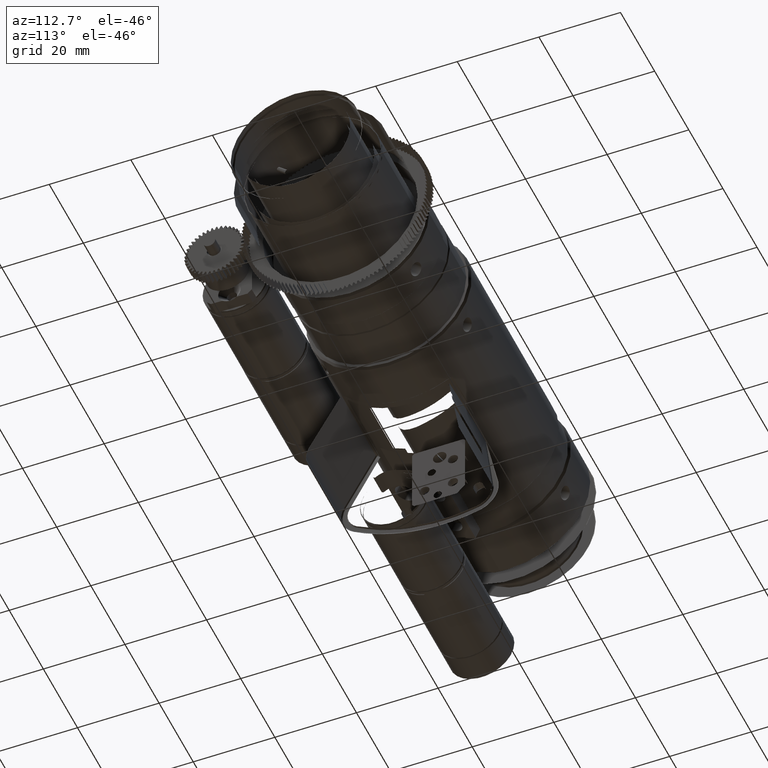
[diagram: clean part render]
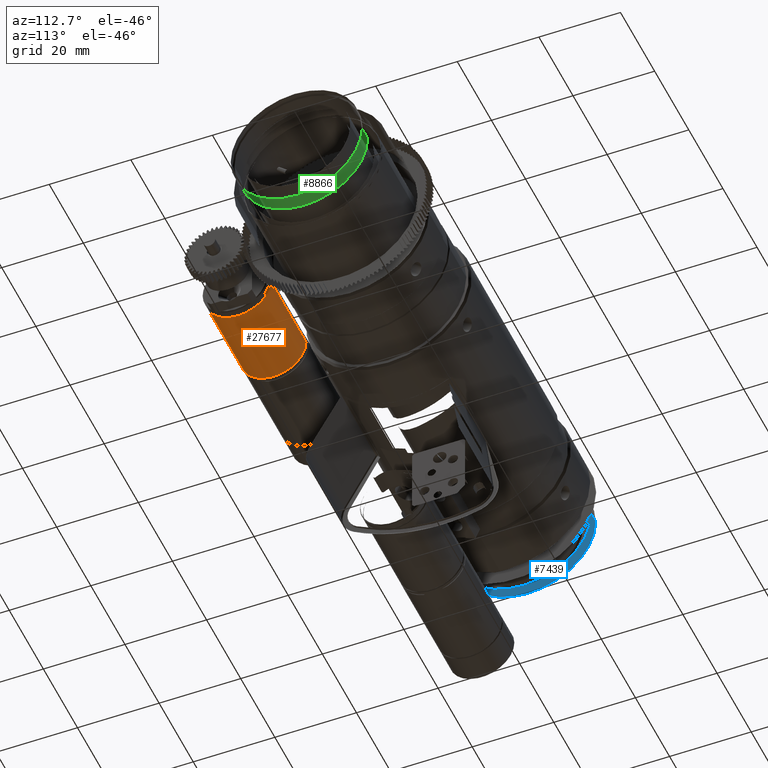
[diagram: same view with three faces highlighted in distinct colors, each labeled with its STEP entity id]
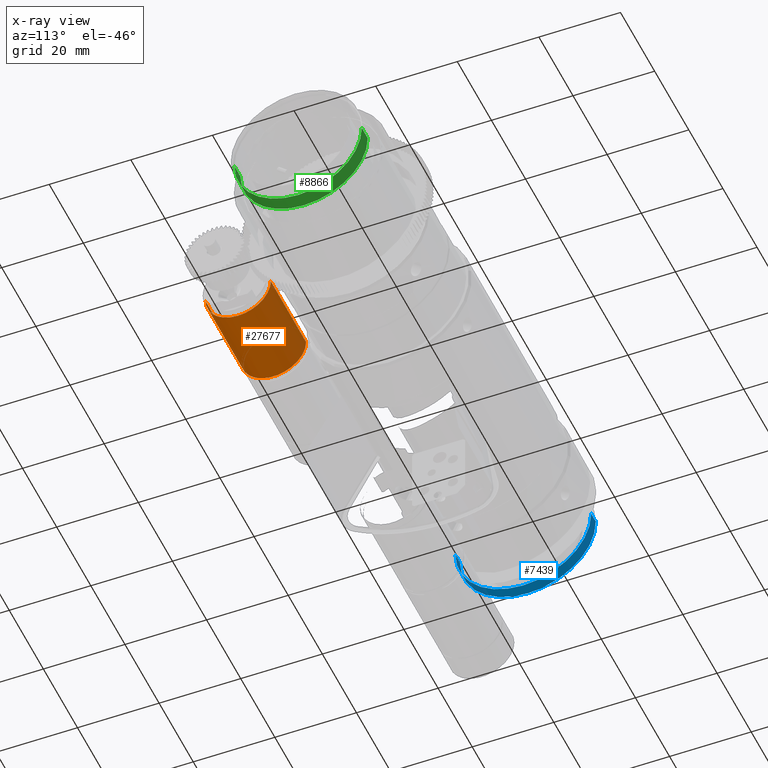
[diagram: x-ray of the same camera — body ghosted, the three highlighted faces saturated]
A machine part, auxiliary view with three faces highlighted in distinct colors.
The next image is the same camera in x-ray (body ghosted, the three faces saturated) — at least one of them is partly hidden behind the body in this view.
Their STEP definitions:

[orange] entity #27677 — the highlighted cylindrical surface (edge-blend (fillet) strip) has radius 8 mm, axis along (-1, 0, -0).
#1433 = AXIS2_PLACEMENT_3D ( 'NONE', #17285, #31291, #41313 ) ;
#2037 = AXIS2_PLACEMENT_3D ( 'NONE', #25452, #25410, #25314 ) ;
#3458 = ORIENTED_EDGE ( 'NONE', *, *, #10834, .F. ) ;
#5370 = DIRECTION ( 'NONE',  ( -1.000000000000000000, 2.533259473827085100E-015, -2.222534175615041600E-015 ) ) ;
#8318 = CARTESIAN_POINT ( 'NONE',  ( 94.19999999996343800, -37.59602203224783800, -1.037833020896449200 ) ) ;
#10834 = EDGE_CURVE ( 'NONE', #35383, #30589, #19042, .T. ) ;
#11891 = CARTESIAN_POINT ( 'NONE',  ( 94.19999999996346700, -21.59602203224782700, -1.037833020896448100 ) ) ;
#12305 = EDGE_CURVE ( 'NONE', #37927, #33830, #38876, .T. ) ;
#13789 = AXIS2_PLACEMENT_3D ( 'NONE', #40548, #40060, #40015 ) ;
#15434 = EDGE_CURVE ( 'NONE', #18920, #37927, #25400, .T. ) ;
#17270 = ORIENTED_EDGE ( 'NONE', *, *, #15434, .T. ) ;
#17285 = CARTESIAN_POINT ( 'NONE',  ( 111.1999999999634500, -29.59602203224787300, -1.037833020896388400 ) ) ;
#18920 = VERTEX_POINT ( 'NONE', #11891 ) ;
#19042 = CIRCLE ( 'NONE', #2037, 8.000000000000008900 ) ;
#19137 = DIRECTION ( 'NONE',  ( -1.734723475976806300E-015, -1.000000000000000000, 0.0000000000000000000 ) ) ;
#19172 = DIRECTION ( 'NONE',  ( -1.000000000000000000, 2.533259473827085100E-015, -2.222534175615041600E-015 ) ) ;
#19237 = CARTESIAN_POINT ( 'NONE',  ( 94.19999999996345300, -29.59602203224783400, -1.037833020896426200 ) ) ;
#19785 = EDGE_LOOP ( 'NONE', ( #23289, #17270, #34766, #34584, #3458 ) ) ;
#19857 = CARTESIAN_POINT ( 'NONE',  ( 111.1999999999634700, -21.59602203224787000, -1.037833020896387500 ) ) ;
#21427 = EDGE_CURVE ( 'NONE', #18920, #35383, #30914, .T. ) ;
#22201 = CARTESIAN_POINT ( 'NONE',  ( 73.49999999996342100, -37.59602203224777400, -1.037833020896471200 ) ) ;
#22498 = EDGE_CURVE ( 'NONE', #33830, #30589, #24805, .T. ) ;
#22588 = CARTESIAN_POINT ( 'NONE',  ( 94.19999999996346700, -29.59602203224783400, -9.037833020896446400 ) ) ;
#22845 = CARTESIAN_POINT ( 'NONE',  ( 111.1999999999634400, -37.59602203224788000, -1.037833020896388400 ) ) ;
#23289 = ORIENTED_EDGE ( 'NONE', *, *, #21427, .F. ) ;
#24805 = LINE ( 'NONE', #22845, #25191 ) ;
#25191 = VECTOR ( 'NONE', #5370, 1000.000000000000000 ) ;
#25314 = DIRECTION ( 'NONE',  ( 0.0000000000000000000, -0.6560590289904976200, -0.7547095802227802300 ) ) ;
#25400 = CIRCLE ( 'NONE', #13789, 8.000000000000003600 ) ;
#25410 = DIRECTION ( 'NONE',  ( -1.000000000000000000, 2.533259473827085100E-015, -2.222534175615041600E-015 ) ) ;
#25452 = CARTESIAN_POINT ( 'NONE',  ( 73.49999999996343500, -29.59602203224777700, -1.037833020896472100 ) ) ;
#26536 = CARTESIAN_POINT ( 'NONE',  ( 73.49999999996345000, -21.59602203224779500, -1.037833020896472100 ) ) ;
#27677 = ADVANCED_FACE ( 'NONE', ( #43934 ), #43572, .T. ) ;
#30368 = DIRECTION ( 'NONE',  ( -1.000000000000000000, 2.533259473827085100E-015, -2.222534175615041600E-015 ) ) ;
#30589 = VERTEX_POINT ( 'NONE', #22201 ) ;
#30819 = VECTOR ( 'NONE', #30368, 1000.000000000000000 ) ;
#30914 = LINE ( 'NONE', #19857, #30819 ) ;
#31291 = DIRECTION ( 'NONE',  ( -1.000000000000000000, 2.533259473827085100E-015, -2.222534175615041600E-015 ) ) ;
#33830 = VERTEX_POINT ( 'NONE', #8318 ) ;
#34584 = ORIENTED_EDGE ( 'NONE', *, *, #22498, .T. ) ;
#34766 = ORIENTED_EDGE ( 'NONE', *, *, #12305, .T. ) ;
#35383 = VERTEX_POINT ( 'NONE', #26536 ) ;
#37927 = VERTEX_POINT ( 'NONE', #22588 ) ;
#38876 = CIRCLE ( 'NONE', #43713, 8.000000000000003600 ) ;
#40015 = DIRECTION ( 'NONE',  ( -1.734723475976806300E-015, -1.000000000000000000, 0.0000000000000000000 ) ) ;
#40060 = DIRECTION ( 'NONE',  ( -1.000000000000000000, 2.533259473827085100E-015, -2.222534175615041600E-015 ) ) ;
#40548 = CARTESIAN_POINT ( 'NONE',  ( 94.19999999996345300, -29.59602203224783400, -1.037833020896426200 ) ) ;
#41313 = DIRECTION ( 'NONE',  ( -1.734723475976806300E-015, -1.000000000000000000, 0.0000000000000000000 ) ) ;
#43572 = CYLINDRICAL_SURFACE ( 'NONE', #1433, 8.000000000000003600 ) ;
#43713 = AXIS2_PLACEMENT_3D ( 'NONE', #19237, #19172, #19137 ) ;
#43934 = FACE_OUTER_BOUND ( 'NONE', #19785, .T. ) ;

[blue] entity #7439 — the highlighted cylindrical surface (partial cylindrical patch) has radius 16.65 mm, axis along (1, -0, -0).
#904 = VERTEX_POINT ( 'NONE', #4287 ) ;
#4287 = CARTESIAN_POINT ( 'NONE',  ( -4.800000000036410700, 16.64999999999999900, 3.740075347244394500E-031 ) ) ;
#4539 = CYLINDRICAL_SURFACE ( 'NONE', #28025, 16.64999999999999900 ) ;
#4776 = ORIENTED_EDGE ( 'NONE', *, *, #11649, .F. ) ;
#6643 = FACE_OUTER_BOUND ( 'NONE', #6686, .T. ) ;
#6686 = EDGE_LOOP ( 'NONE', ( #19632, #22735, #22151, #4776, #33608, #11518 ) ) ;
#7439 = ADVANCED_FACE ( 'NONE', ( #6643 ), #4539, .F. ) ;
#8673 = CARTESIAN_POINT ( 'NONE',  ( -4.800000000036410700, 0.0000000000000000000, -16.64999999999999900 ) ) ;
#9096 = DIRECTION ( 'NONE',  ( 1.000000000000000000, -1.635240667832669900E-030, -3.571983385474939900E-032 ) ) ;
#10980 = EDGE_CURVE ( 'NONE', #904, #11551, #12469, .T. ) ;
#11413 = DIRECTION ( 'NONE',  ( -1.000000000000000000, 1.635240667832669900E-030, 3.571983385474939900E-032 ) ) ;
#11495 = CARTESIAN_POINT ( 'NONE',  ( -2.100000000036402500, 1.846751162690088300E-029, 3.257857590205276400E-031 ) ) ;
#11518 = ORIENTED_EDGE ( 'NONE', *, *, #20683, .T. ) ;
#11551 = VERTEX_POINT ( 'NONE', #42625 ) ;
#11649 = EDGE_CURVE ( 'NONE', #11551, #11951, #28542, .T. ) ;
#11951 = VERTEX_POINT ( 'NONE', #34115 ) ;
#12469 = LINE ( 'NONE', #22324, #33534 ) ;
#14702 = EDGE_CURVE ( 'NONE', #25185, #36304, #32592, .T. ) ;
#15067 = DIRECTION ( 'NONE',  ( 0.0000000000000000000, 1.000000000000000000, 0.0000000000000000000 ) ) ;
#15503 = AXIS2_PLACEMENT_3D ( 'NONE', #26670, #26611, #26549 ) ;
#18921 = CARTESIAN_POINT ( 'NONE',  ( -2.100000000036402500, 1.846751162690088300E-029, 3.257857590205276400E-031 ) ) ;
#19296 = AXIS2_PLACEMENT_3D ( 'NONE', #18921, #45000, #20721 ) ;
#19632 = ORIENTED_EDGE ( 'NONE', *, *, #14702, .T. ) ;
#20502 = DIRECTION ( 'NONE',  ( 0.0000000000000000000, 1.000000000000000000, 0.0000000000000000000 ) ) ;
#20683 = EDGE_CURVE ( 'NONE', #904, #25185, #34900, .T. ) ;
#20721 = DIRECTION ( 'NONE',  ( 0.0000000000000000000, 1.000000000000000000, 0.0000000000000000000 ) ) ;
#20911 = EDGE_CURVE ( 'NONE', #36304, #31809, #33783, .T. ) ;
#21143 = CIRCLE ( 'NONE', #38424, 16.64999999999999900 ) ;
#21269 = CARTESIAN_POINT ( 'NONE',  ( -5.100000000036401600, 2.337323363039889100E-029, 4.329452605847757500E-031 ) ) ;
#22151 = ORIENTED_EDGE ( 'NONE', *, *, #23313, .F. ) ;
#22243 = CARTESIAN_POINT ( 'NONE',  ( -2.100000000036402500, -16.64999999999999900, 2.039036920580343500E-015 ) ) ;
#22324 = CARTESIAN_POINT ( 'NONE',  ( -5.100000000036401600, 16.64999999999999900, 4.329452605847757500E-031 ) ) ;
#22420 = DIRECTION ( 'NONE',  ( 1.000000000000000000, -1.635240667832669900E-030, -3.571983385474939900E-032 ) ) ;
#22735 = ORIENTED_EDGE ( 'NONE', *, *, #20911, .T. ) ;
#23313 = EDGE_CURVE ( 'NONE', #11951, #31809, #21143, .T. ) ;
#25185 = VERTEX_POINT ( 'NONE', #8673 ) ;
#26549 = DIRECTION ( 'NONE',  ( 0.0000000000000000000, 0.01153877701086202300, -0.9999334260965046000 ) ) ;
#26611 = DIRECTION ( 'NONE',  ( -1.000000000000000000, 1.635240667832669900E-030, 3.571983385474939900E-032 ) ) ;
#26670 = CARTESIAN_POINT ( 'NONE',  ( -4.800000000036410700, 2.288266143004910700E-029, 4.222293104283513000E-031 ) ) ;
#28025 = AXIS2_PLACEMENT_3D ( 'NONE', #21269, #38092, #20502 ) ;
#28542 = CIRCLE ( 'NONE', #19296, 16.64999999999999900 ) ;
#30094 = CARTESIAN_POINT ( 'NONE',  ( -5.100000000036401600, -16.64999999999999900, 2.039036920580343500E-015 ) ) ;
#31809 = VERTEX_POINT ( 'NONE', #22243 ) ;
#32334 = CARTESIAN_POINT ( 'NONE',  ( -4.800000000036410700, 2.288266143004910700E-029, 4.222293104283513000E-031 ) ) ;
#32592 = CIRCLE ( 'NONE', #15503, 16.64999999999999900 ) ;
#33488 = VECTOR ( 'NONE', #9096, 1000.000000000000000 ) ;
#33534 = VECTOR ( 'NONE', #22420, 1000.000000000000000 ) ;
#33608 = ORIENTED_EDGE ( 'NONE', *, *, #10980, .F. ) ;
#33783 = LINE ( 'NONE', #30094, #33488 ) ;
#34115 = CARTESIAN_POINT ( 'NONE',  ( -2.100000000036402500, 2.039036920579832000E-015, -16.64999999999582400 ) ) ;
#34900 = CIRCLE ( 'NONE', #42126, 16.64999999999999900 ) ;
#35682 = DIRECTION ( 'NONE',  ( 0.0000000000000000000, 0.01153877701086202300, -0.9999334260965046000 ) ) ;
#35745 = DIRECTION ( 'NONE',  ( -1.000000000000000000, 1.635240667832669900E-030, 3.571983385474939900E-032 ) ) ;
#36304 = VERTEX_POINT ( 'NONE', #45112 ) ;
#38092 = DIRECTION ( 'NONE',  ( 1.000000000000000000, -1.635240667832669900E-030, -3.571983385474939900E-032 ) ) ;
#38424 = AXIS2_PLACEMENT_3D ( 'NONE', #11495, #35745, #15067 ) ;
#42126 = AXIS2_PLACEMENT_3D ( 'NONE', #32334, #11413, #35682 ) ;
#42625 = CARTESIAN_POINT ( 'NONE',  ( -2.100000000036402500, 16.64999999999999900, 3.740075347244394500E-031 ) ) ;
#45000 = DIRECTION ( 'NONE',  ( -1.000000000000000000, 1.635240667832669900E-030, 3.571983385474939900E-032 ) ) ;
#45112 = CARTESIAN_POINT ( 'NONE',  ( -4.800000000036410700, -16.64999999999999900, 2.039036920580343500E-015 ) ) ;

[green] entity #8866 — the highlighted cylindrical surface (partial cylindrical patch) has radius 15.6 mm, axis along (-1, -0, 0).
#471 = VECTOR ( 'NONE', #2224, 1000.000000000000000 ) ;
#785 = AXIS2_PLACEMENT_3D ( 'NONE', #19954, #20107, #19905 ) ;
#1866 = CARTESIAN_POINT ( 'NONE',  ( 126.3000000000638000, 15.59999999999981700, -1.886945548999302800E-015 ) ) ;
#2224 = DIRECTION ( 'NONE',  ( -1.000000000000000000, -1.017949417668863000E-016, 6.808368128482870600E-017 ) ) ;
#2384 = CARTESIAN_POINT ( 'NONE',  ( 93.99307615362531000, 15.59999999999981300, 4.317751996993918000E-016 ) ) ;
#4105 = EDGE_CURVE ( 'NONE', #31855, #35281, #8243, .T. ) ;
#4442 = FACE_OUTER_BOUND ( 'NONE', #15427, .T. ) ;
#4744 = VERTEX_POINT ( 'NONE', #18000 ) ;
#4747 = CYLINDRICAL_SURFACE ( 'NONE', #785, 15.59999999999981100 ) ;
#5630 = ORIENTED_EDGE ( 'NONE', *, *, #42604, .T. ) ;
#6685 = AXIS2_PLACEMENT_3D ( 'NONE', #32857, #32805, #32766 ) ;
#6902 = EDGE_CURVE ( 'NONE', #26940, #31855, #28416, .T. ) ;
#7006 = EDGE_CURVE ( 'NONE', #4744, #41586, #19388, .T. ) ;
#7204 = VERTEX_POINT ( 'NONE', #1866 ) ;
#7612 = EDGE_CURVE ( 'NONE', #41586, #7204, #38167, .T. ) ;
#7673 = DIRECTION ( 'NONE',  ( 0.0000000000000000000, 0.6560590289904980600, 0.7547095802227800100 ) ) ;
#7914 = DIRECTION ( 'NONE',  ( 1.000000000000000000, 1.017949417668863000E-016, -6.808368128482870600E-017 ) ) ;
#7970 = CARTESIAN_POINT ( 'NONE',  ( 129.7999999999490800, 5.855794740921087800E-015, -3.916540997913693400E-015 ) ) ;
#8243 = CIRCLE ( 'NONE', #6685, 15.59999999999981100 ) ;
#8866 = ADVANCED_FACE ( 'NONE', ( #4442 ), #4747, .F. ) ;
#10478 = CARTESIAN_POINT ( 'NONE',  ( 129.7999999999490800, 5.855794740921087800E-015, -3.916540997913693400E-015 ) ) ;
#11221 = DIRECTION ( 'NONE',  ( -1.000000000000000000, -1.017949417668863000E-016, 6.808368128482870600E-017 ) ) ;
#11237 = CARTESIAN_POINT ( 'NONE',  ( 93.99307615362531000, -15.59999999999981000, -1.478673806970456100E-015 ) ) ;
#11875 = ORIENTED_EDGE ( 'NONE', *, *, #4105, .F. ) ;
#12160 = ORIENTED_EDGE ( 'NONE', *, *, #6902, .F. ) ;
#12413 = ORIENTED_EDGE ( 'NONE', *, *, #7006, .T. ) ;
#14048 = DIRECTION ( 'NONE',  ( 0.0000000000000000000, 0.6560590289904980600, 0.7547095802227800100 ) ) ;
#14159 = CIRCLE ( 'NONE', #22538, 15.59999999999981100 ) ;
#14786 = AXIS2_PLACEMENT_3D ( 'NONE', #7970, #7914, #7673 ) ;
#15427 = EDGE_LOOP ( 'NONE', ( #12413, #21157, #28707, #11875, #12160, #5630 ) ) ;
#16137 = CIRCLE ( 'NONE', #18599, 15.59999999999991600 ) ;
#16407 = EDGE_CURVE ( 'NONE', #35281, #7204, #14159, .T. ) ;
#18000 = CARTESIAN_POINT ( 'NONE',  ( 129.7999999999490800, 6.071532165918824800E-015, -15.59999999999991800 ) ) ;
#18599 = AXIS2_PLACEMENT_3D ( 'NONE', #10478, #34788, #14048 ) ;
#19388 = CIRCLE ( 'NONE', #14786, 15.59999999999991600 ) ;
#19905 = DIRECTION ( 'NONE',  ( 0.0000000000000000000, -1.000000000000000000, 0.0000000000000000000 ) ) ;
#19954 = CARTESIAN_POINT ( 'NONE',  ( 93.99307615362531000, 2.210831013133232300E-015, -1.478673806970456100E-015 ) ) ;
#20107 = DIRECTION ( 'NONE',  ( -1.000000000000000000, -1.017949417668863000E-016, 6.808368128482870600E-017 ) ) ;
#21157 = ORIENTED_EDGE ( 'NONE', *, *, #7612, .T. ) ;
#22538 = AXIS2_PLACEMENT_3D ( 'NONE', #28271, #28223, #28213 ) ;
#23193 = VECTOR ( 'NONE', #11221, 1000.000000000000000 ) ;
#24440 = CARTESIAN_POINT ( 'NONE',  ( 129.7999999999490800, -15.59999999999991100, -3.797394555669150400E-015 ) ) ;
#26940 = VERTEX_POINT ( 'NONE', #24440 ) ;
#28213 = DIRECTION ( 'NONE',  ( 0.0000000000000000000, -1.000000000000000000, 0.0000000000000000000 ) ) ;
#28223 = DIRECTION ( 'NONE',  ( 1.000000000000000000, 1.017949417668863000E-016, -6.808368128482870600E-017 ) ) ;
#28271 = CARTESIAN_POINT ( 'NONE',  ( 126.3000000000638000, 5.499512444748669400E-015, -3.678248113424606600E-015 ) ) ;
#28416 = LINE ( 'NONE', #11237, #23193 ) ;
#28707 = ORIENTED_EDGE ( 'NONE', *, *, #16407, .F. ) ;
#31855 = VERTEX_POINT ( 'NONE', #43014 ) ;
#32766 = DIRECTION ( 'NONE',  ( 0.0000000000000000000, -1.000000000000000000, 0.0000000000000000000 ) ) ;
#32805 = DIRECTION ( 'NONE',  ( 1.000000000000000000, 1.017949417668863000E-016, -6.808368128482870600E-017 ) ) ;
#32857 = CARTESIAN_POINT ( 'NONE',  ( 126.3000000000638000, 5.499512444748669400E-015, -3.678248113424606600E-015 ) ) ;
#34652 = CARTESIAN_POINT ( 'NONE',  ( 129.7999999999490800, 15.59999999999992100, -1.886945548999289400E-015 ) ) ;
#34788 = DIRECTION ( 'NONE',  ( 1.000000000000000000, 1.017949417668863000E-016, -6.808368128482870600E-017 ) ) ;
#35281 = VERTEX_POINT ( 'NONE', #35848 ) ;
#35848 = CARTESIAN_POINT ( 'NONE',  ( 126.3000000000638000, 8.000350874575893900E-015, -15.59999999999981500 ) ) ;
#38167 = LINE ( 'NONE', #2384, #471 ) ;
#41586 = VERTEX_POINT ( 'NONE', #34652 ) ;
#42604 = EDGE_CURVE ( 'NONE', #26940, #4744, #16137, .T. ) ;
#43014 = CARTESIAN_POINT ( 'NONE',  ( 126.3000000000638000, -15.59999999999980600, -3.797394555669151200E-015 ) ) ;